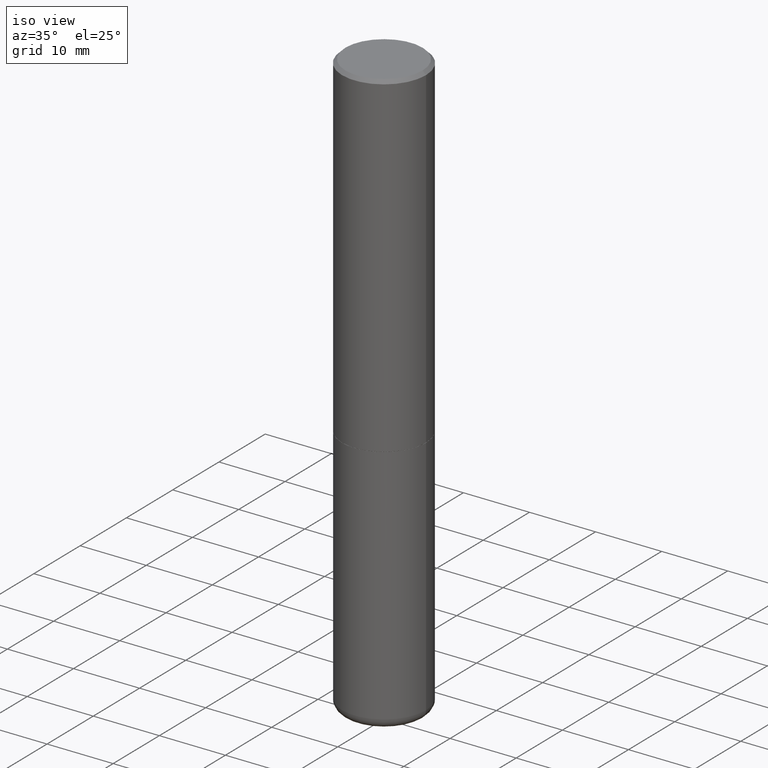
[diagram: clean part render]
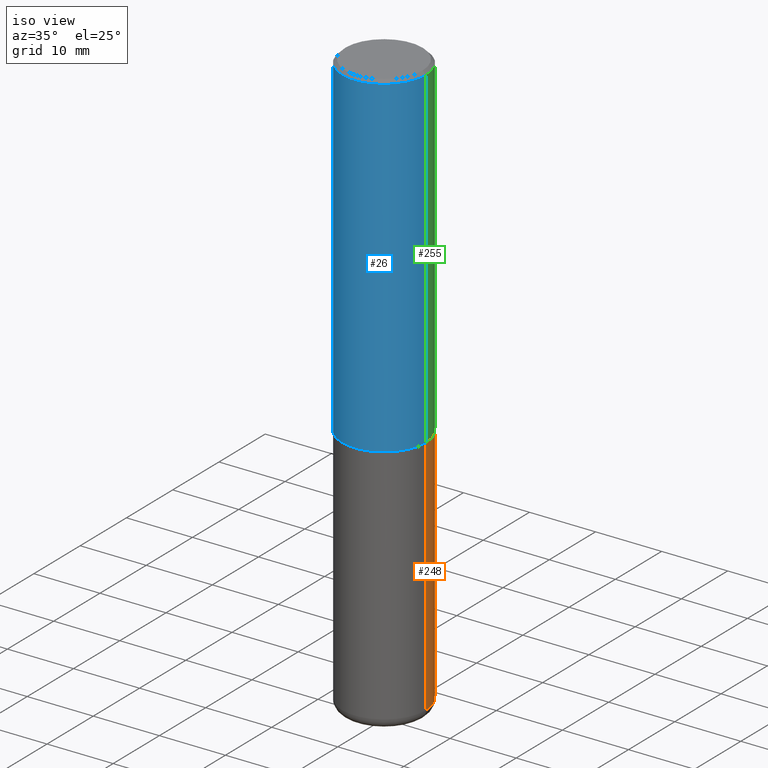
[diagram: same view with three faces highlighted in distinct colors, each labeled with its STEP entity id]
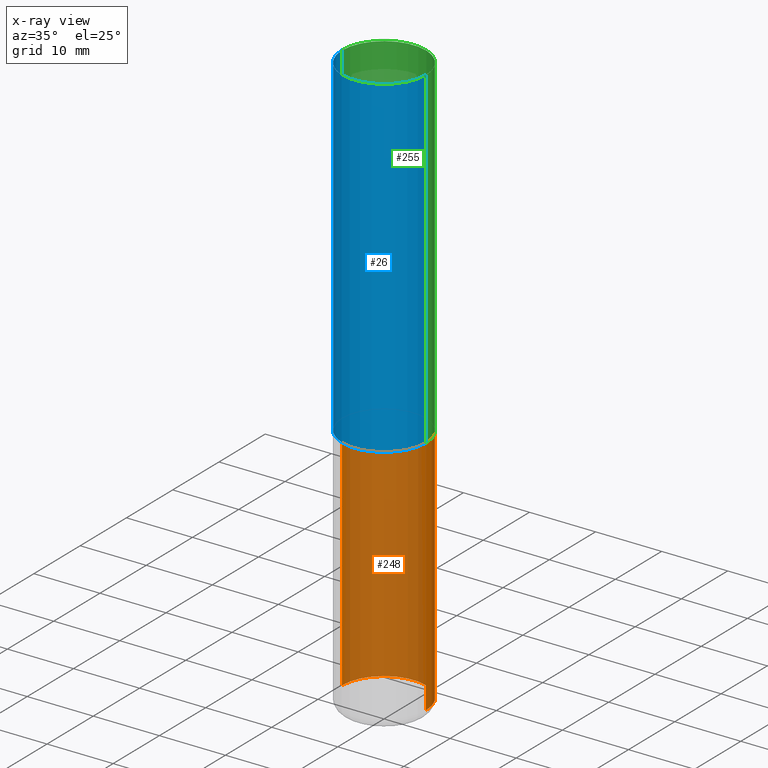
[diagram: x-ray of the same camera — body ghosted, the three highlighted faces saturated]
A machine part, iso view with three faces highlighted in distinct colors.
The next image is the same camera in x-ray (body ghosted, the three faces saturated) — at least one of them is partly hidden behind the body in this view.
Their STEP definitions:

[orange] entity #248 — the highlighted cylindrical surface (partial cylindrical patch) has radius 6.35 mm, axis along (-0, 0, 1).
#5 = CARTESIAN_POINT ( 'NONE',  ( 0.000000000000000000, 0.000000000000000000, 0.000000000000000000 ) ) ;
#31 = DIRECTION ( 'NONE',  ( -2.445468806185136877E-29, 3.491481338843145188E-15, 1.000000000000000000 ) ) ;
#32 = DIRECTION ( 'NONE',  ( -2.445468806185136877E-29, 3.491481338843145188E-15, 1.000000000000000000 ) ) ;
#38 = DIRECTION ( 'NONE',  ( -2.445468806185136597E-29, 3.491481338843145583E-15, 1.000000000000000000 ) ) ;
#42 = AXIS2_PLACEMENT_3D ( 'NONE', #165, #291, #102 ) ;
#67 = CYLINDRICAL_SURFACE ( 'NONE', #311, 0.2500000000000000000 ) ;
#68 = CARTESIAN_POINT ( 'NONE',  ( -0.2500000000000000000, -7.720472402253106025E-15, -2.000000000000000000 ) ) ;
#92 = CARTESIAN_POINT ( 'NONE',  ( 0.2499999999999999722, -1.375643647504198770E-14, -3.439999999999999947 ) ) ;
#102 = DIRECTION ( 'NONE',  ( 1.000000000000000000, -6.982962677686270655E-15, 0.000000000000000000 ) ) ;
#103 = AXIS2_PLACEMENT_3D ( 'NONE', #393, #361, #359 ) ;
#109 = VERTEX_POINT ( 'NONE', #279 ) ;
#111 = ORIENTED_EDGE ( 'NONE', *, *, #304, .F. ) ;
#130 = FACE_OUTER_BOUND ( 'NONE', #379, .T. ) ;
#160 = EDGE_CURVE ( 'NONE', #282, #247, #260, .T. ) ;
#165 = CARTESIAN_POINT ( 'NONE',  ( 8.412412693276869938E-29, -1.201069580562042103E-14, -3.439999999999999947 ) ) ;
#203 = CARTESIAN_POINT ( 'NONE',  ( 0.2500000000000000000, -1.745740669421566678E-15, 1.219044193948983948E-29 ) ) ;
#223 = VECTOR ( 'NONE', #31, 39.37007874015748143 ) ;
#229 = CIRCLE ( 'NONE', #103, 0.2500000000000000000 ) ;
#235 = VECTOR ( 'NONE', #32, 39.37007874015748143 ) ;
#244 = VERTEX_POINT ( 'NONE', #68 ) ;
#247 = VERTEX_POINT ( 'NONE', #253 ) ;
#248 = ADVANCED_FACE ( 'NONE', ( #130 ), #67, .T. ) ;
#253 = CARTESIAN_POINT ( 'NONE',  ( 0.2500000000000000000, -8.728703347107857054E-15, -2.000000000000000000 ) ) ;
#260 = LINE ( 'NONE', #203, #223 ) ;
#262 = LINE ( 'NONE', #418, #235 ) ;
#279 = CARTESIAN_POINT ( 'NONE',  ( -0.2499999999999999722, -1.023433896622016898E-14, -3.439999999999999947 ) ) ;
#282 = VERTEX_POINT ( 'NONE', #92 ) ;
#289 = EDGE_CURVE ( 'NONE', #109, #244, #262, .T. ) ;
#291 = DIRECTION ( 'NONE',  ( -2.445468806185136597E-29, 3.491481338843145583E-15, 1.000000000000000000 ) ) ;
#299 = ORIENTED_EDGE ( 'NONE', *, *, #289, .T. ) ;
#304 = EDGE_CURVE ( 'NONE', #247, #244, #229, .T. ) ;
#310 = EDGE_CURVE ( 'NONE', #282, #109, #340, .T. ) ;
#311 = AXIS2_PLACEMENT_3D ( 'NONE', #5, #38, #324 ) ;
#324 = DIRECTION ( 'NONE',  ( 1.000000000000000000, -6.982962677686266711E-15, 4.876176775795935793E-29 ) ) ;
#335 = ORIENTED_EDGE ( 'NONE', *, *, #160, .F. ) ;
#340 = CIRCLE ( 'NONE', #42, 0.2500000000000000000 ) ;
#359 = DIRECTION ( 'NONE',  ( 1.000000000000000000, -6.982962677686266711E-15, 0.000000000000000000 ) ) ;
#361 = DIRECTION ( 'NONE',  ( -2.445468806185136597E-29, 3.491481338843145583E-15, 1.000000000000000000 ) ) ;
#379 = EDGE_LOOP ( 'NONE', ( #401, #299, #111, #335 ) ) ;
#393 = CARTESIAN_POINT ( 'NONE',  ( 4.890937612370273194E-29, -6.982962677686291165E-15, -2.000000000000000000 ) ) ;
#401 = ORIENTED_EDGE ( 'NONE', *, *, #310, .T. ) ;
#418 = CARTESIAN_POINT ( 'NONE',  ( -0.2500000000000000000, 1.776356839400250465E-15, -1.229733772563726445E-29 ) ) ;

[blue] entity #26 — the highlighted cylindrical surface (partial cylindrical patch) has radius 6.35 mm, axis along (-0, 0, 1).
#4 = CARTESIAN_POINT ( 'NONE',  ( 0.2499999999999999167, -1.784954126219745400E-15, -0.02000000000000005593 ) ) ;
#17 = DIRECTION ( 'NONE',  ( -2.445468806185136877E-29, 3.491481338843145188E-15, 1.000000000000000000 ) ) ;
#26 = ADVANCED_FACE ( 'NONE', ( #412 ), #123, .T. ) ;
#35 = VECTOR ( 'NONE', #330, 39.37007874015748143 ) ;
#45 = EDGE_LOOP ( 'NONE', ( #213, #182, #308, #144 ) ) ;
#69 = DIRECTION ( 'NONE',  ( -2.445468806185136597E-29, 3.491481338843145583E-15, 1.000000000000000000 ) ) ;
#76 = LINE ( 'NONE', #364, #35 ) ;
#90 = DIRECTION ( 'NONE',  ( -2.445468806185136597E-29, 3.491481338843145583E-15, 1.000000000000000000 ) ) ;
#91 = CARTESIAN_POINT ( 'NONE',  ( -0.2499999999999999167, 1.675911042644703182E-15, -0.02000000000000005593 ) ) ;
#116 = AXIS2_PLACEMENT_3D ( 'NONE', #326, #322, #294 ) ;
#117 = LINE ( 'NONE', #163, #273 ) ;
#119 = VERTEX_POINT ( 'NONE', #4 ) ;
#123 = CYLINDRICAL_SURFACE ( 'NONE', #143, 0.2500000000000001110 ) ;
#131 = EDGE_CURVE ( 'NONE', #141, #119, #189, .T. ) ;
#132 = DIRECTION ( 'NONE',  ( 1.000000000000000000, -6.982962677686267499E-15, 0.000000000000000000 ) ) ;
#141 = VERTEX_POINT ( 'NONE', #91 ) ;
#143 = AXIS2_PLACEMENT_3D ( 'NONE', #309, #90, #157 ) ;
#144 = ORIENTED_EDGE ( 'NONE', *, *, #131, .F. ) ;
#157 = DIRECTION ( 'NONE',  ( 1.000000000000000000, -6.982962677686266711E-15, 4.876176775795935793E-29 ) ) ;
#163 = CARTESIAN_POINT ( 'NONE',  ( -0.2500000000000001110, 1.776356839400251254E-15, -1.229733772563727006E-29 ) ) ;
#182 = ORIENTED_EDGE ( 'NONE', *, *, #336, .T. ) ;
#189 = CIRCLE ( 'NONE', #402, 0.2499999999999999167 ) ;
#192 = CIRCLE ( 'NONE', #116, 0.2500000000000002776 ) ;
#213 = ORIENTED_EDGE ( 'NONE', *, *, #224, .F. ) ;
#224 = EDGE_CURVE ( 'NONE', #332, #141, #117, .T. ) ;
#270 = VERTEX_POINT ( 'NONE', #318 ) ;
#273 = VECTOR ( 'NONE', #17, 39.37007874015748143 ) ;
#290 = CARTESIAN_POINT ( 'NONE',  ( 4.890937612370287172E-31, -6.982962677686310098E-17, -0.02000000000000005593 ) ) ;
#294 = DIRECTION ( 'NONE',  ( 1.000000000000000000, -6.982962677686266711E-15, 0.000000000000000000 ) ) ;
#308 = ORIENTED_EDGE ( 'NONE', *, *, #407, .T. ) ;
#309 = CARTESIAN_POINT ( 'NONE',  ( 0.000000000000000000, 0.000000000000000000, 0.000000000000000000 ) ) ;
#318 = CARTESIAN_POINT ( 'NONE',  ( 0.2500000000000002776, -8.725211865769015625E-15, -1.998999999999999888 ) ) ;
#322 = DIRECTION ( 'NONE',  ( -2.445468806185136597E-29, 3.491481338843145583E-15, 1.000000000000000000 ) ) ;
#326 = CARTESIAN_POINT ( 'NONE',  ( 4.888492143564087591E-29, -6.979471196347447369E-15, -1.998999999999999888 ) ) ;
#330 = DIRECTION ( 'NONE',  ( -2.445468806185136877E-29, 3.491481338843145188E-15, 1.000000000000000000 ) ) ;
#332 = VERTEX_POINT ( 'NONE', #391 ) ;
#336 = EDGE_CURVE ( 'NONE', #332, #270, #192, .T. ) ;
#364 = CARTESIAN_POINT ( 'NONE',  ( 0.2500000000000001110, -1.745740669421567467E-15, 1.219044193948984509E-29 ) ) ;
#391 = CARTESIAN_POINT ( 'NONE',  ( -0.2500000000000002776, -1.748293572161900530E-15, -1.998999999999999888 ) ) ;
#402 = AXIS2_PLACEMENT_3D ( 'NONE', #290, #69, #132 ) ;
#407 = EDGE_CURVE ( 'NONE', #270, #119, #76, .T. ) ;
#412 = FACE_OUTER_BOUND ( 'NONE', #45, .T. ) ;

[green] entity #255 — the highlighted cylindrical surface (partial cylindrical patch) has radius 6.35 mm, axis along (-0, 0, 1).
#4 = CARTESIAN_POINT ( 'NONE',  ( 0.2499999999999999167, -1.784954126219745400E-15, -0.02000000000000005593 ) ) ;
#17 = DIRECTION ( 'NONE',  ( -2.445468806185136877E-29, 3.491481338843145188E-15, 1.000000000000000000 ) ) ;
#29 = CARTESIAN_POINT ( 'NONE',  ( 4.890937612370287172E-31, -6.982962677686310098E-17, -0.02000000000000005593 ) ) ;
#35 = VECTOR ( 'NONE', #330, 39.37007874015748143 ) ;
#65 = CIRCLE ( 'NONE', #95, 0.2500000000000002776 ) ;
#72 = FACE_OUTER_BOUND ( 'NONE', #210, .T. ) ;
#75 = DIRECTION ( 'NONE',  ( 1.000000000000000000, -6.982962677686266711E-15, 0.000000000000000000 ) ) ;
#76 = LINE ( 'NONE', #364, #35 ) ;
#86 = ORIENTED_EDGE ( 'NONE', *, *, #407, .F. ) ;
#91 = CARTESIAN_POINT ( 'NONE',  ( -0.2499999999999999167, 1.675911042644703182E-15, -0.02000000000000005593 ) ) ;
#95 = AXIS2_PLACEMENT_3D ( 'NONE', #325, #358, #75 ) ;
#117 = LINE ( 'NONE', #163, #273 ) ;
#119 = VERTEX_POINT ( 'NONE', #4 ) ;
#141 = VERTEX_POINT ( 'NONE', #91 ) ;
#148 = ORIENTED_EDGE ( 'NONE', *, *, #224, .T. ) ;
#154 = CIRCLE ( 'NONE', #231, 0.2499999999999999167 ) ;
#163 = CARTESIAN_POINT ( 'NONE',  ( -0.2500000000000001110, 1.776356839400251254E-15, -1.229733772563727006E-29 ) ) ;
#170 = DIRECTION ( 'NONE',  ( -2.445468806185136597E-29, 3.491481338843145583E-15, 1.000000000000000000 ) ) ;
#171 = EDGE_CURVE ( 'NONE', #270, #332, #65, .T. ) ;
#181 = AXIS2_PLACEMENT_3D ( 'NONE', #202, #170, #296 ) ;
#202 = CARTESIAN_POINT ( 'NONE',  ( 0.000000000000000000, 0.000000000000000000, 0.000000000000000000 ) ) ;
#210 = EDGE_LOOP ( 'NONE', ( #312, #148, #380, #86 ) ) ;
#224 = EDGE_CURVE ( 'NONE', #332, #141, #117, .T. ) ;
#231 = AXIS2_PLACEMENT_3D ( 'NONE', #29, #417, #233 ) ;
#233 = DIRECTION ( 'NONE',  ( 1.000000000000000000, -6.982962677686267499E-15, 0.000000000000000000 ) ) ;
#255 = ADVANCED_FACE ( 'NONE', ( #72 ), #259, .T. ) ;
#259 = CYLINDRICAL_SURFACE ( 'NONE', #181, 0.2500000000000001110 ) ;
#270 = VERTEX_POINT ( 'NONE', #318 ) ;
#273 = VECTOR ( 'NONE', #17, 39.37007874015748143 ) ;
#296 = DIRECTION ( 'NONE',  ( 1.000000000000000000, -6.982962677686266711E-15, 4.876176775795935793E-29 ) ) ;
#312 = ORIENTED_EDGE ( 'NONE', *, *, #171, .T. ) ;
#318 = CARTESIAN_POINT ( 'NONE',  ( 0.2500000000000002776, -8.725211865769015625E-15, -1.998999999999999888 ) ) ;
#325 = CARTESIAN_POINT ( 'NONE',  ( 4.888492143564087591E-29, -6.979471196347447369E-15, -1.998999999999999888 ) ) ;
#327 = EDGE_CURVE ( 'NONE', #119, #141, #154, .T. ) ;
#330 = DIRECTION ( 'NONE',  ( -2.445468806185136877E-29, 3.491481338843145188E-15, 1.000000000000000000 ) ) ;
#332 = VERTEX_POINT ( 'NONE', #391 ) ;
#358 = DIRECTION ( 'NONE',  ( -2.445468806185136597E-29, 3.491481338843145583E-15, 1.000000000000000000 ) ) ;
#364 = CARTESIAN_POINT ( 'NONE',  ( 0.2500000000000001110, -1.745740669421567467E-15, 1.219044193948984509E-29 ) ) ;
#380 = ORIENTED_EDGE ( 'NONE', *, *, #327, .F. ) ;
#391 = CARTESIAN_POINT ( 'NONE',  ( -0.2500000000000002776, -1.748293572161900530E-15, -1.998999999999999888 ) ) ;
#407 = EDGE_CURVE ( 'NONE', #270, #119, #76, .T. ) ;
#417 = DIRECTION ( 'NONE',  ( -2.445468806185136597E-29, 3.491481338843145583E-15, 1.000000000000000000 ) ) ;